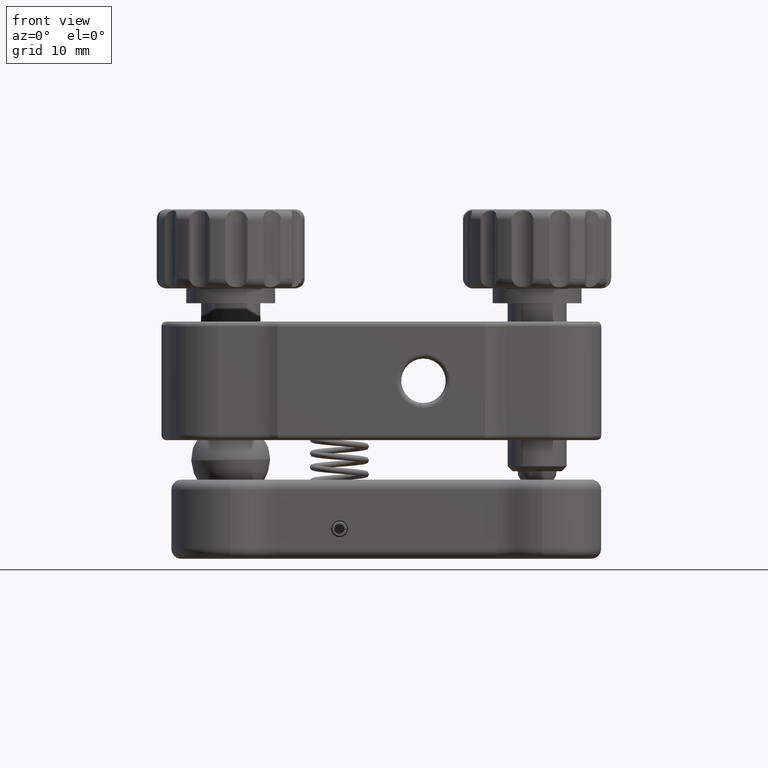
[diagram: clean part render]
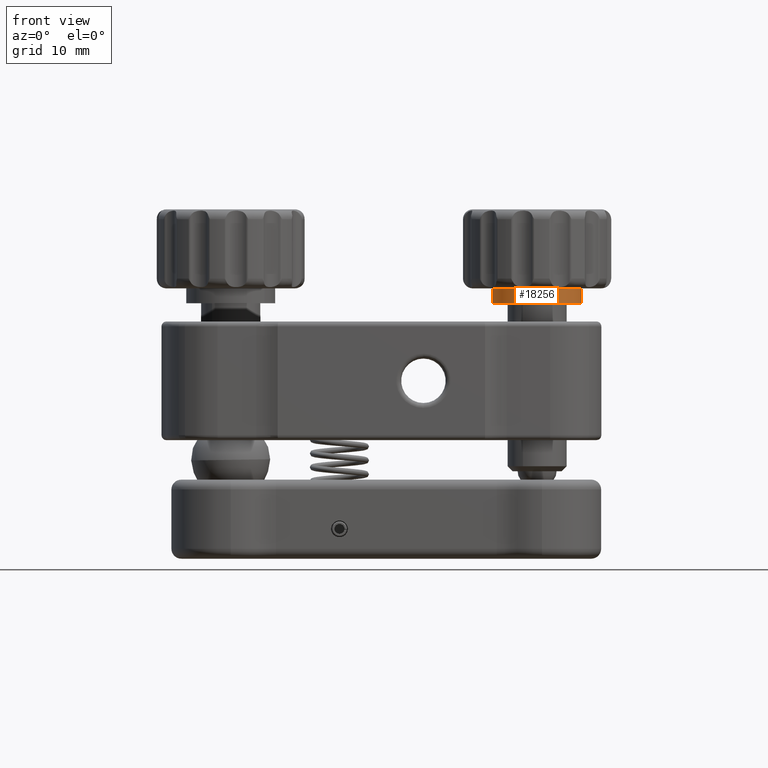
[diagram: same view with one face highlighted and labeled with its STEP entity id]
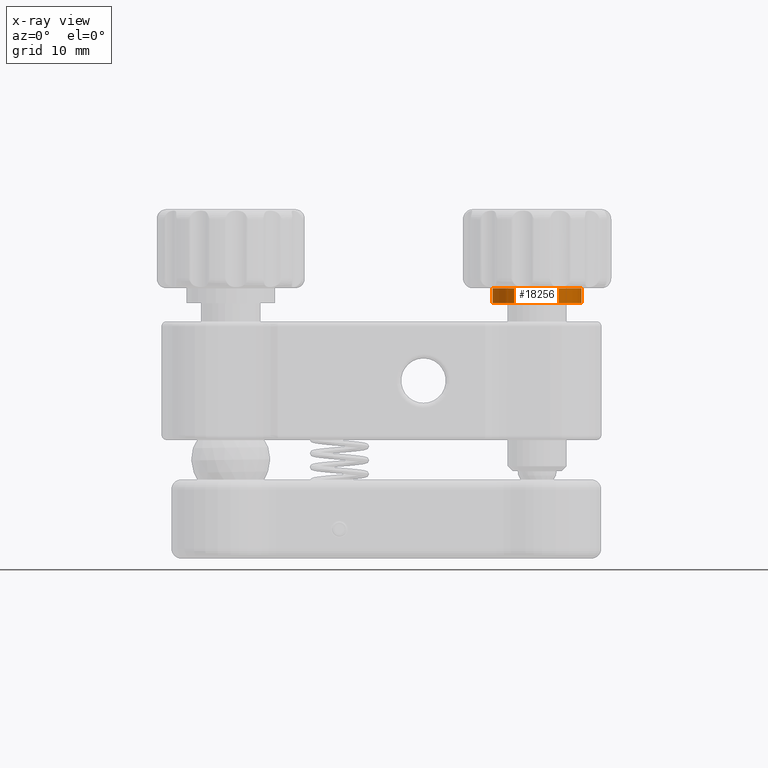
[diagram: x-ray of the same camera — body ghosted, the highlighted face saturated]
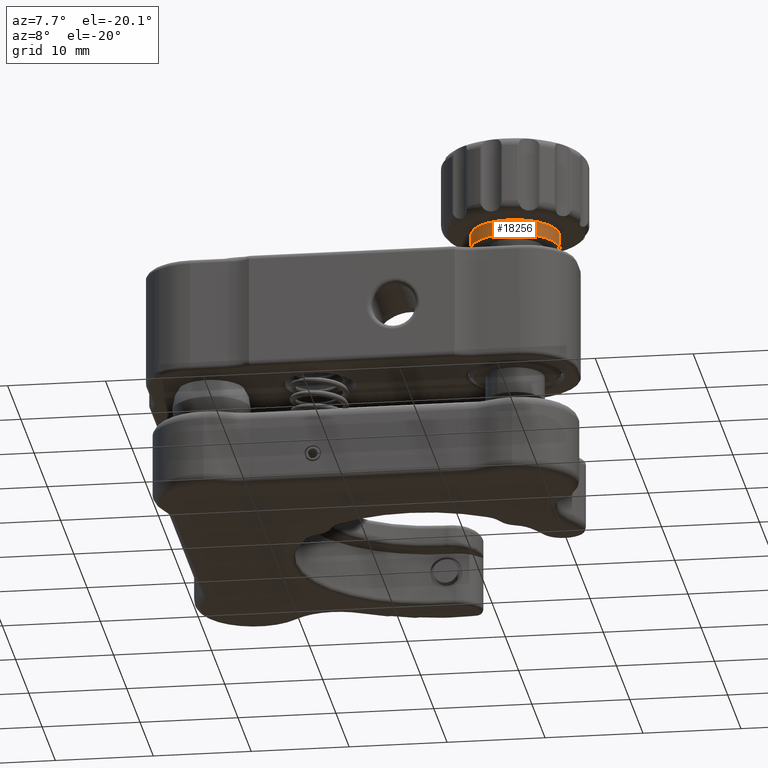
[diagram: same view with one face highlighted and labeled with its STEP entity id]
A machine part, front view. The second image highlights one B-rep face of the part: STEP entity #18256.
The next image is the same camera in x-ray: the body ghosted, the highlighted face saturated — about 0% of this face is hidden behind the body in this view.
A second angle (auxiliary view) of the same face is appended — the face is thin or edge-on in the first view.
In plain terms, the highlighted cylindrical surface (partial cylindrical patch) has radius 4.5 mm, axis along (0, -0, 1).
Its self-contained STEP definition (entity closure, byte-faithful):
#554 = VECTOR ( 'NONE', #22188, 1000.000000000000000 ) ;
#2197 = DIRECTION ( 'NONE',  ( -2.078105408777857018E-17, 2.681774073642865142E-16, -1.000000000000000000 ) ) ;
#2358 = VERTEX_POINT ( 'NONE', #8552 ) ;
#4433 = LINE ( 'NONE', #16637, #4761 ) ;
#4761 = VECTOR ( 'NONE', #22047, 1000.000000000000000 ) ;
#5479 = AXIS2_PLACEMENT_3D ( 'NONE', #10750, #7307, #21334 ) ;
#6740 = VERTEX_POINT ( 'NONE', #9786 ) ;
#7307 = DIRECTION ( 'NONE',  ( 2.078105408777857018E-17, -2.681774073642865142E-16, 1.000000000000000000 ) ) ;
#7358 = CIRCLE ( 'NONE', #19858, 4.500000000000046185 ) ;
#8393 = DIRECTION ( 'NONE',  ( -2.078105408777857018E-17, 2.681774073642865142E-16, -1.000000000000000000 ) ) ;
#8451 = ORIENTED_EDGE ( 'NONE', *, *, #10569, .F. ) ;
#8552 = CARTESIAN_POINT ( 'NONE',  ( -28.07329831228874184, -0.2829100860663576467, 7.849999999999996092 ) ) ;
#9327 = CARTESIAN_POINT ( 'NONE',  ( -23.58220024130410764, 3.570778075517145227E-15, 7.849999999999996092 ) ) ;
#9786 = CARTESIAN_POINT ( 'NONE',  ( -19.09110217031946988, 0.2829100860663649741, 7.849999999999996092 ) ) ;
#10524 = AXIS2_PLACEMENT_3D ( 'NONE', #13613, #8393, #20996 ) ;
#10569 = EDGE_CURVE ( 'NONE', #6740, #2358, #7358, .T. ) ;
#10750 = CARTESIAN_POINT ( 'NONE',  ( -23.58220024130410764, 3.570778075517145227E-15, 7.849999999999996092 ) ) ;
#10770 = EDGE_CURVE ( 'NONE', #6740, #22682, #4433, .T. ) ;
#11014 = VERTEX_POINT ( 'NONE', #21166 ) ;
#11763 = CARTESIAN_POINT ( 'NONE',  ( -28.07329831228878803, -0.2829100860663603112, 7.849999999999996092 ) ) ;
#13531 = EDGE_CURVE ( 'NONE', #2358, #11014, #21961, .T. ) ;
#13613 = CARTESIAN_POINT ( 'NONE',  ( -23.58220024130410764, 3.168511964470718833E-15, 9.349999999999997868 ) ) ;
#14154 = ORIENTED_EDGE ( 'NONE', *, *, #13531, .F. ) ;
#14176 = FACE_OUTER_BOUND ( 'NONE', #21189, .T. ) ;
#15339 = CIRCLE ( 'NONE', #10524, 4.500000000000046185 ) ;
#15985 = DIRECTION ( 'NONE',  ( -0.9980217935521413786, -0.06286890801474701029, 0.000000000000000000 ) ) ;
#16188 = ORIENTED_EDGE ( 'NONE', *, *, #10770, .T. ) ;
#16451 = EDGE_CURVE ( 'NONE', #22682, #11014, #15339, .T. ) ;
#16637 = CARTESIAN_POINT ( 'NONE',  ( -19.09110217031942369, 0.2829100860663680272, 7.849999999999996092 ) ) ;
#18256 = ADVANCED_FACE ( 'NONE', ( #14176 ), #21100, .T. ) ;
#19858 = AXIS2_PLACEMENT_3D ( 'NONE', #9327, #2197, #15985 ) ;
#19868 = ORIENTED_EDGE ( 'NONE', *, *, #16451, .T. ) ;
#20996 = DIRECTION ( 'NONE',  ( 0.9980217935521413786, 0.06286890801474701029, 0.000000000000000000 ) ) ;
#21100 = CYLINDRICAL_SURFACE ( 'NONE', #5479, 4.500000000000046185 ) ;
#21166 = CARTESIAN_POINT ( 'NONE',  ( -28.07329831228874184, -0.2829100860663576467, 9.349999999999997868 ) ) ;
#21189 = EDGE_LOOP ( 'NONE', ( #14154, #8451, #16188, #19868 ) ) ;
#21334 = DIRECTION ( 'NONE',  ( 0.9980217935521413786, 0.06286890801474701029, 0.000000000000000000 ) ) ;
#21961 = LINE ( 'NONE', #11763, #554 ) ;
#22047 = DIRECTION ( 'NONE',  ( 2.078105408777857018E-17, -2.681774073642865142E-16, 1.000000000000000000 ) ) ;
#22188 = DIRECTION ( 'NONE',  ( 2.078105408777857018E-17, -2.681774073642865142E-16, 1.000000000000000000 ) ) ;
#22473 = CARTESIAN_POINT ( 'NONE',  ( -19.09110217031942369, 0.2829100860663676387, 9.349999999999997868 ) ) ;
#22682 = VERTEX_POINT ( 'NONE', #22473 ) ;